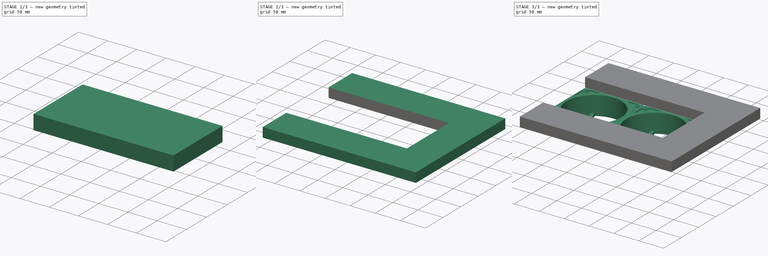
[diagram: build sequence overview — one tinted view per stage of 3, left to right]
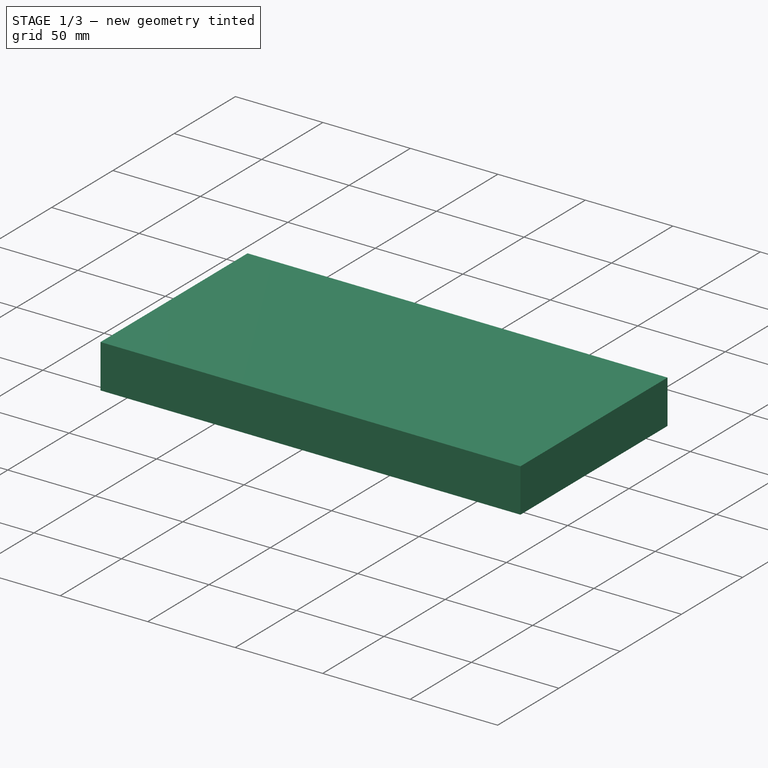
[diagram: stage 1 of 3 — iso view after this stage's code; geometry added in this stage tinted green]
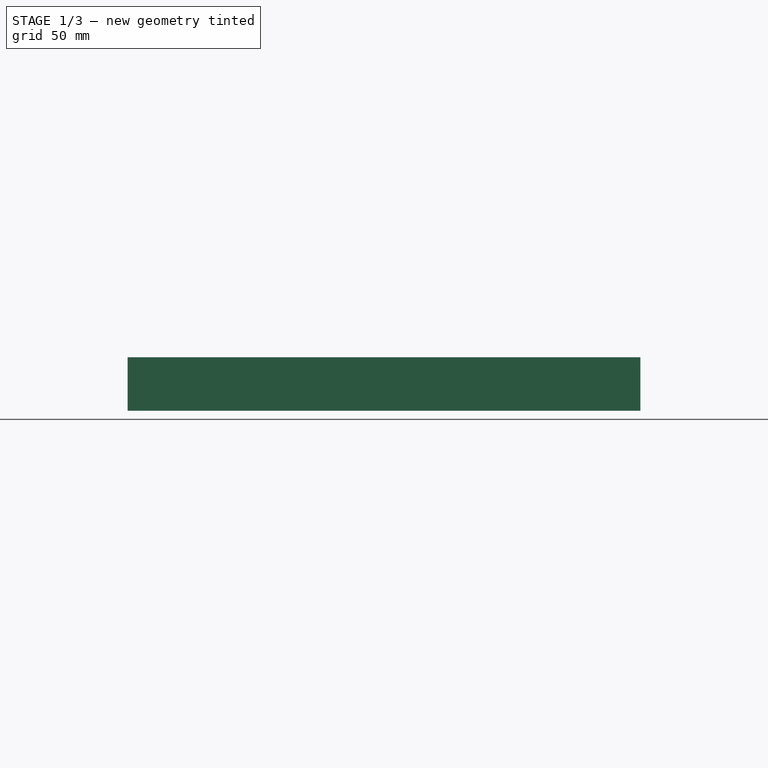
[diagram: stage 1 of 3 — front view after this stage's code; geometry added in this stage tinted green]
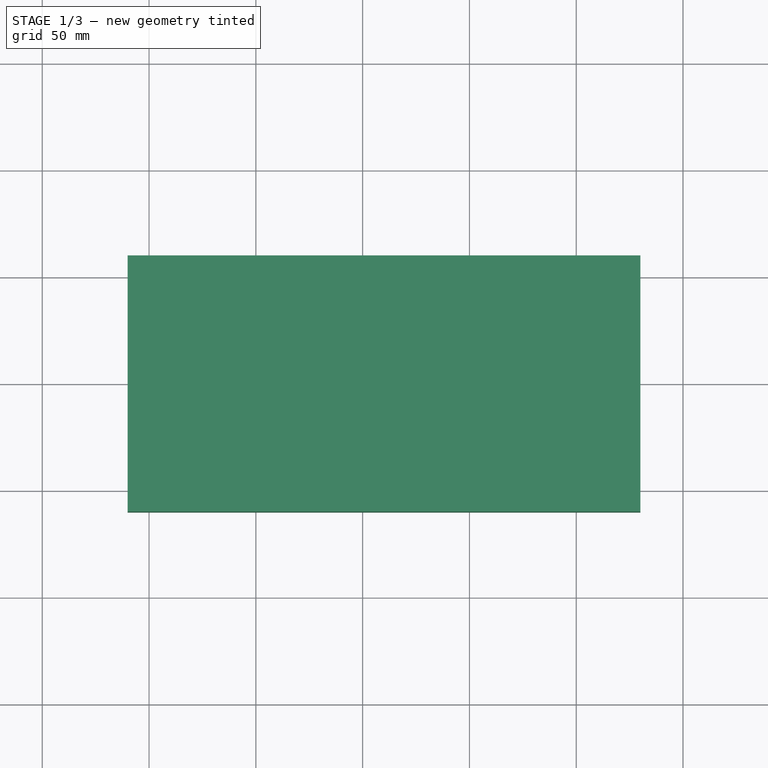
[diagram: stage 1 of 3 — top view after this stage's code; geometry added in this stage tinted green]
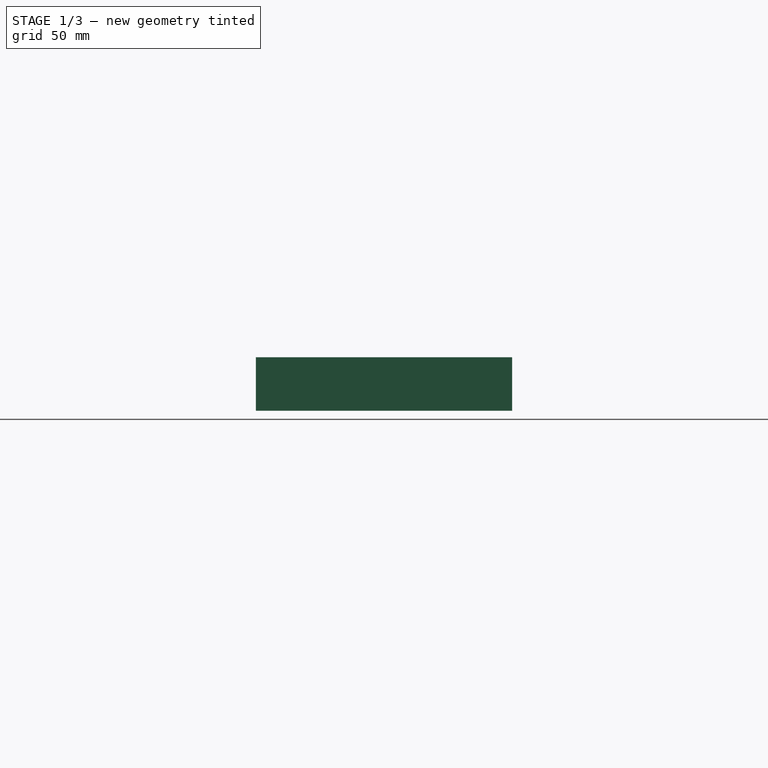
[diagram: stage 1 of 3 — right view after this stage's code; geometry added in this stage tinted green]
FCSTD DOCUMENT  (FreeCAD 0.15R4671 (Git))
Label: Cooler
License: All rights reserved
LicenseURL: http://en.wikipedia.org/wiki/All_rights_reserved
objects: App::FeaturePython×6, Part::FeaturePython×2, Part::Box×1, Sketcher::SketchObject×1, Part::Extrusion×1, Part::Cut×1
note: 6 computed .brp shape members not serialized (recipe doc carries the construction recipe); baked Part::Feature solids carry a one-line shape summary decoded from their .brp

FEATURE [Part::Box] Box  label="Cube"
  Height = 19.05
  Length = 304.8
  Placement = pos=(-60,-127,19) rot=(0,0,1;0rad)
  Width = 254
FEATURE [App::FeaturePython] planeConstraint04  # a2plus constraint (typed FeaturePython)
  Object1 = Fan_02
  Object2 = Fan_01
  SubElement1 = Face99
  SubElement2 = Face85
  Type = plane
  directionConstraint = 1
  offset = 0
FEATURE [App::FeaturePython] planeConstraint05  # a2plus constraint (typed FeaturePython)
  Object1 = Fan_02
  Object2 = Fan_01
  SubElement1 = Face15
  SubElement2 = Face15
  Type = plane
  directionConstraint = 0
  offset = 0
FEATURE [App::FeaturePython] planeConstraint06  # a2plus constraint (typed FeaturePython)
  Object1 = Fan_01
  Object2 = Fan_02
  SubElement1 = Face101
  SubElement2 = Face101
  Type = plane
  directionConstraint = 0
  offset = 0
FEATURE [Sketcher::SketchObject] Sketch
  Placement = pos=(-60,-127,19) rot=(1,0,0;3.14159rad)
  Support = -> Box [Face5]
  sketch-geometry (5):
    g0: LineSegment StartX=0 StartY=-67 StartZ=0 EndX=240 EndY=-67 EndZ=0
    g1: LineSegment StartX=240 StartY=-67 StartZ=0 EndX=240 EndY=-187 EndZ=0
    g2: LineSegment StartX=240 StartY=-187 StartZ=0 EndX=0 EndY=-187 EndZ=0
    g3: LineSegment StartX=0 StartY=-187 StartZ=0 EndX=0 EndY=-67 EndZ=0
    g4: GeomPoint [constr] X=0 Y=-127 Z=0
  constraints (14):
    c: Coincident(g0,g1)
    c: Coincident(g1,g2)
    c: Coincident(g2,g3)
    c: Coincident(g3,g0)
    c: Horizontal(g0)
    c: Horizontal(g2)
    c: Vertical(g1)
    c: Vertical(g3)
    c: DistanceY(g0,g2) = -120
    c: DistanceX(g1,g2) = -240
    c: PointOnObject(g0,g-2)
    c: PointOnObject(g4,g3)
    c: Symmetric(g0,g2,g4)
    c: DistanceY(g-1,g4) = -127
FEATURE [Part::Extrusion] Extrude
  Base = -> Sketch
  Dir = (0,0,25)
  Solid = true
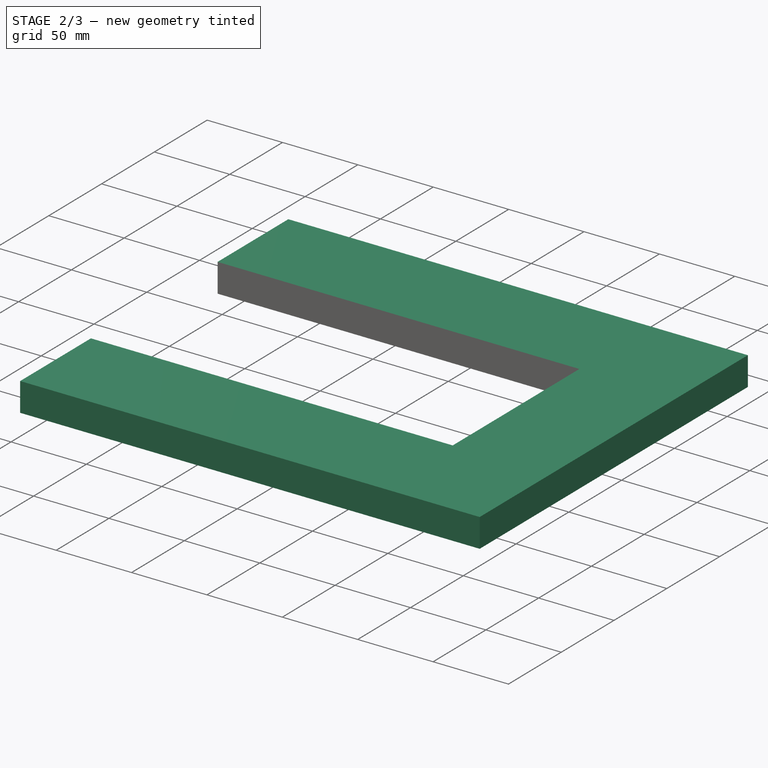
[diagram: stage 2 of 3 — iso view after this stage's code; geometry added in this stage tinted green]
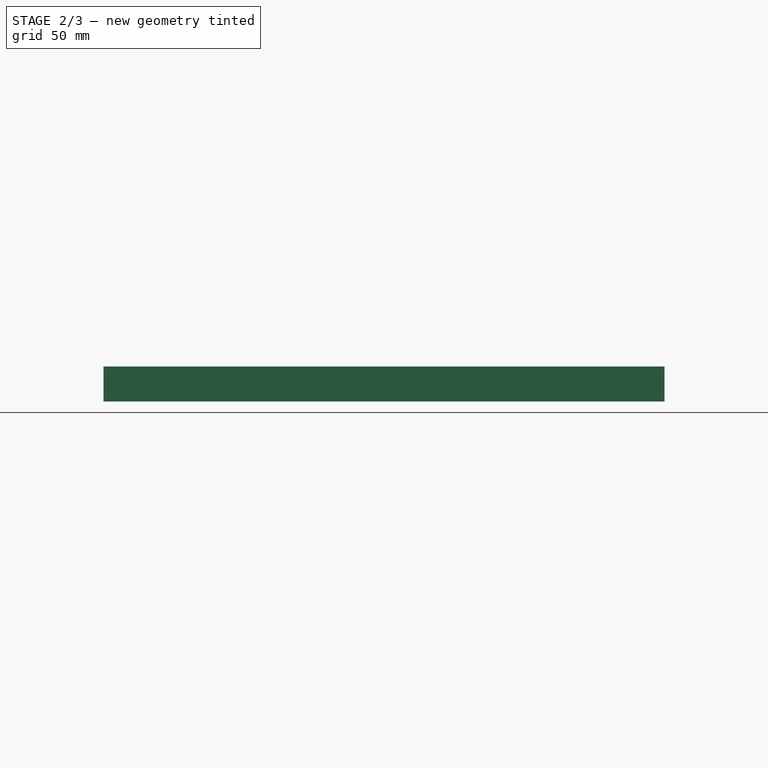
[diagram: stage 2 of 3 — front view after this stage's code; geometry added in this stage tinted green]
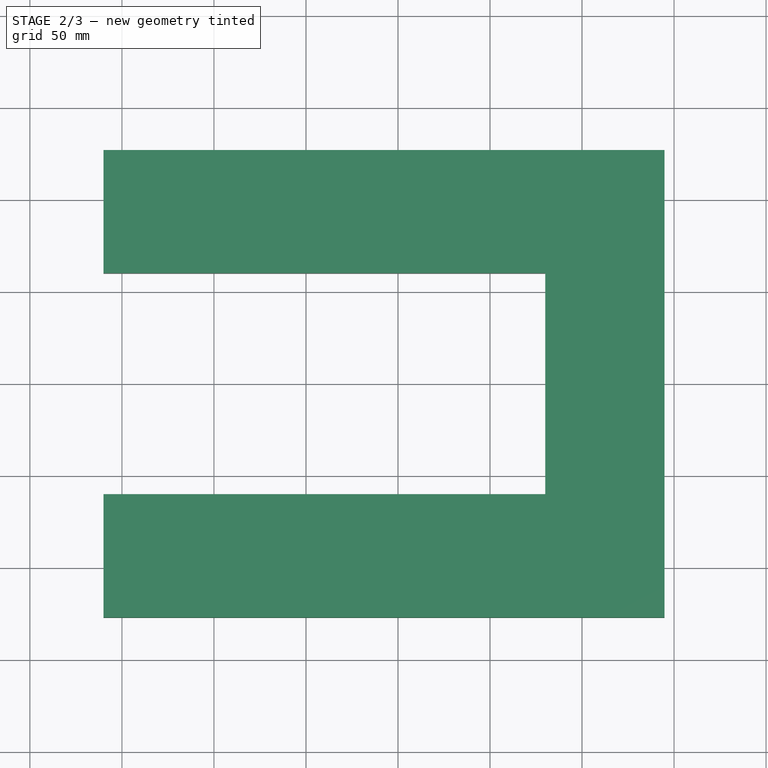
[diagram: stage 2 of 3 — top view after this stage's code; geometry added in this stage tinted green]
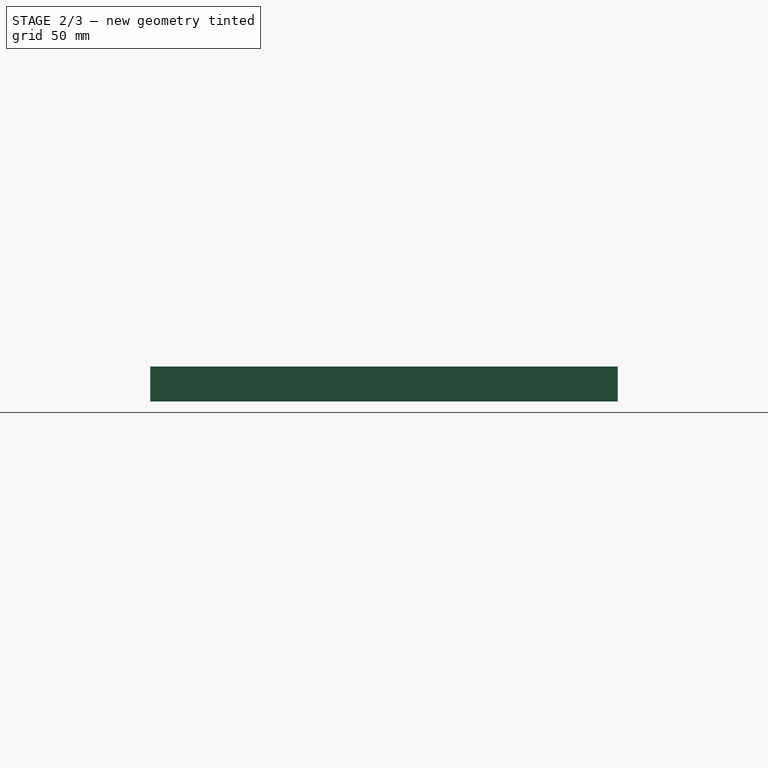
[diagram: stage 2 of 3 — right view after this stage's code; geometry added in this stage tinted green]
FEATURE [Part::Cut] Cut
  Base = -> Box
  Tool = -> Extrude
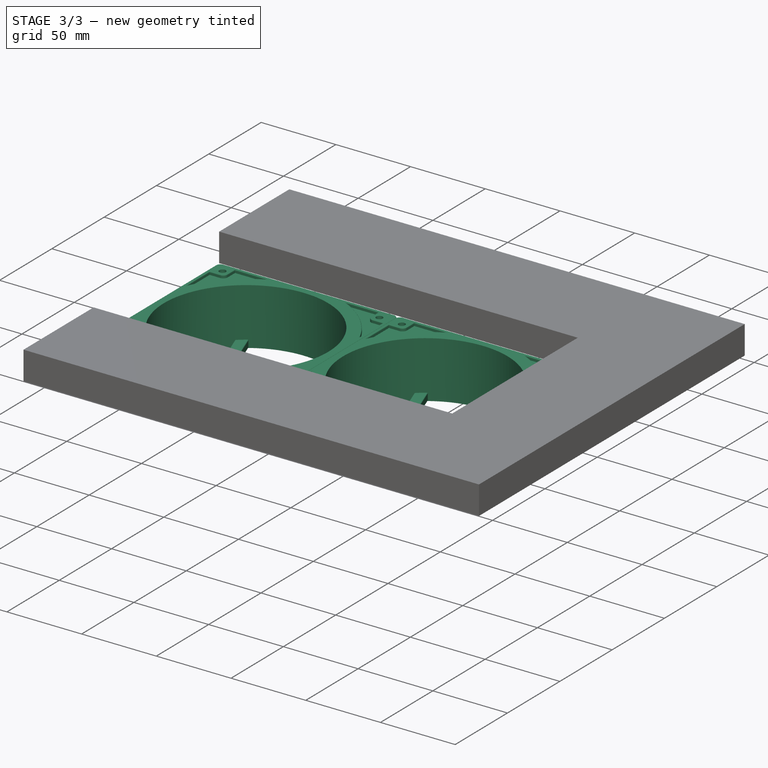
[diagram: stage 3 of 3 — iso view after this stage's code; geometry added in this stage tinted green]
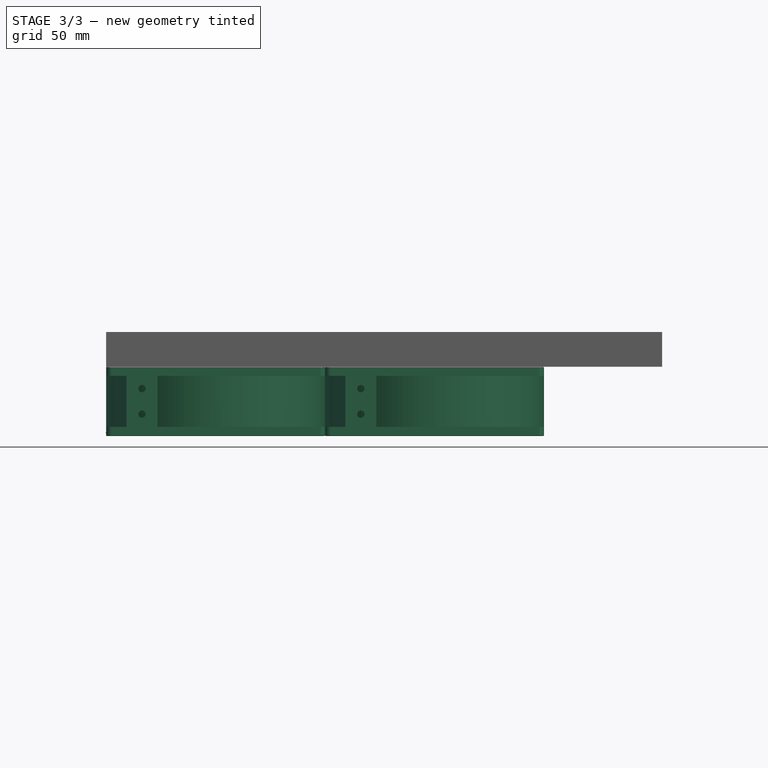
[diagram: stage 3 of 3 — front view after this stage's code; geometry added in this stage tinted green]
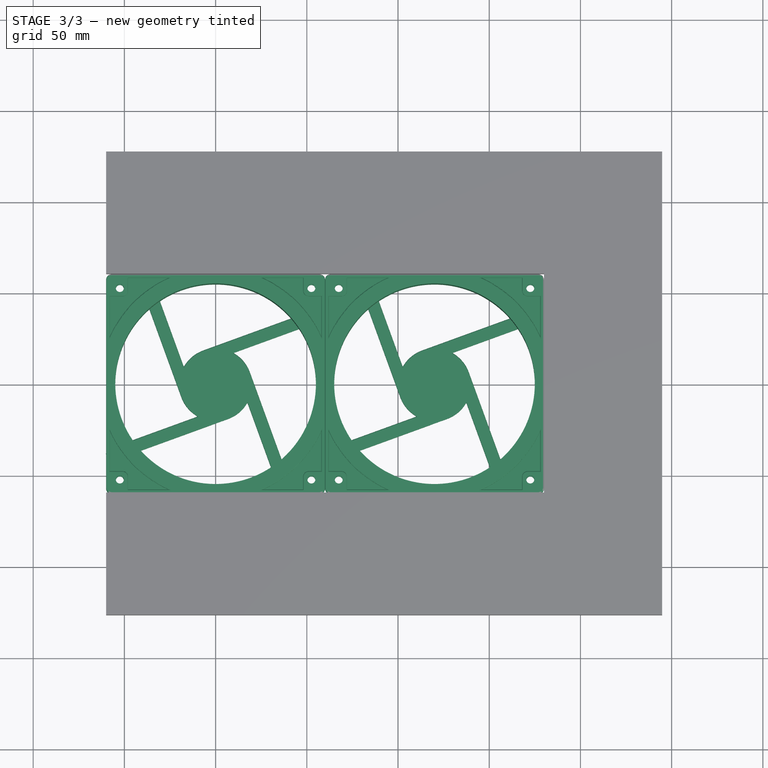
[diagram: stage 3 of 3 — top view after this stage's code; geometry added in this stage tinted green]
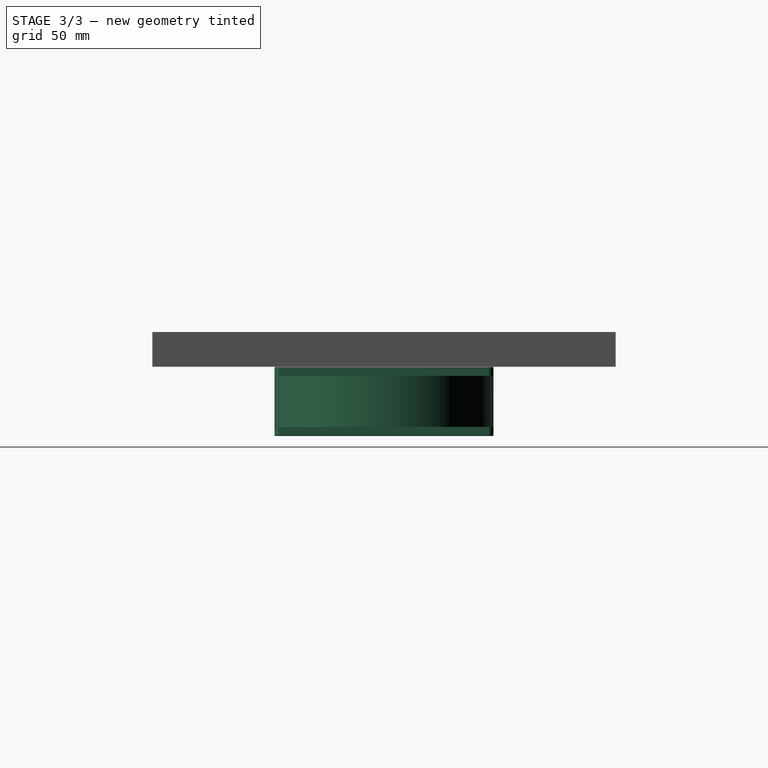
[diagram: stage 3 of 3 — right view after this stage's code; geometry added in this stage tinted green]
FEATURE [Part::FeaturePython] Fan_01  # a2plus imported part (geometry in sourceFile) (typed FeaturePython)
  fixedPosition = true
  sourceFile = <userpath>/projects/_random/Taz_Mega/Rack/CAD/_ref/Fan/Fan.fcstd
  timeLastImport = 1.44746e+09
  updateColors = true
FEATURE [App::FeaturePython] planeConstraint01  # a2plus constraint (typed FeaturePython)
  Object1 = Fan_01
  Object2 = Box
  SubElement1 = Face28
  SubElement2 = Face5
  Type = plane
  directionConstraint = 0
  offset = 0
FEATURE [App::FeaturePython] planeConstraint02  # a2plus constraint (typed FeaturePython)
  Object1 = Fan_01
  Object2 = Box
  SubElement1 = Face102
  SubElement2 = Face3
  Type = plane
  directionConstraint = 1
  offset = -67
FEATURE [App::FeaturePython] planeConstraint03  # a2plus constraint (typed FeaturePython)
  Object1 = Fan_01
  Object2 = Box
  SubElement1 = Face99
  SubElement2 = Face1
  Type = plane
  directionConstraint = 0
  offset = 0
FEATURE [Part::FeaturePython] Fan_02  # a2plus imported part (geometry in sourceFile) (typed FeaturePython)
  Placement = pos=(120,0,0) rot=(0,0,1;0rad)
  fixedPosition = false
  sourceFile = <userpath>/projects/_random/Taz_Mega/Rack/CAD/_ref/Fan/Fan.fcstd
  timeLastImport = 1.44746e+09
  updateColors = true
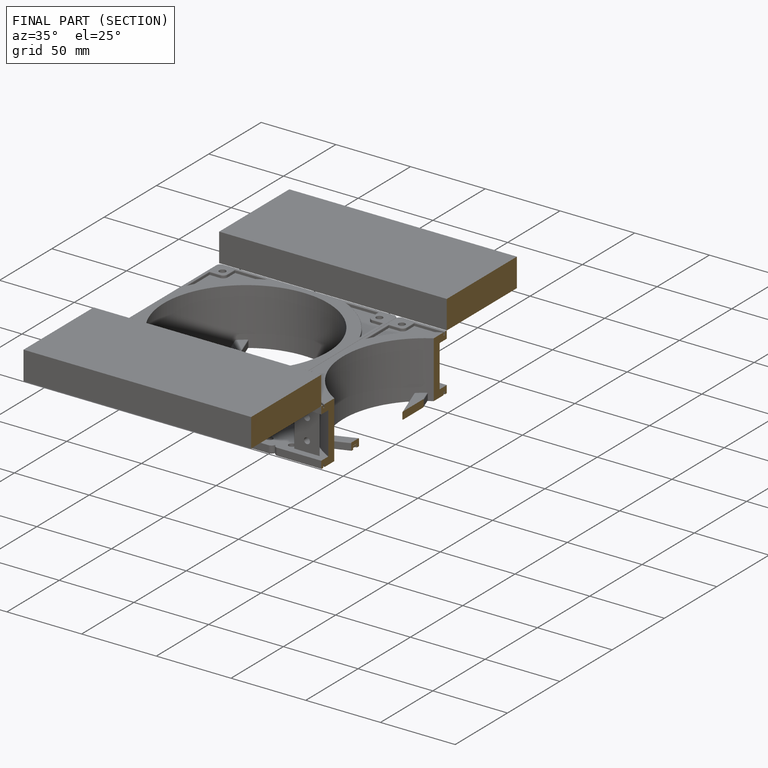
[diagram: finished part — half-section view (interior)]
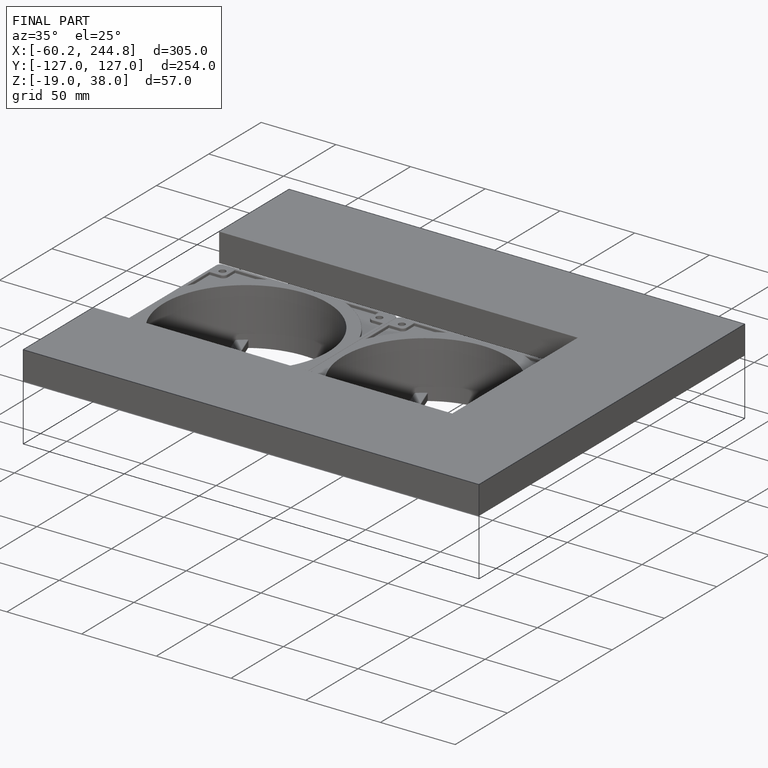
[diagram: finished part — iso view with bounding-box wireframe]
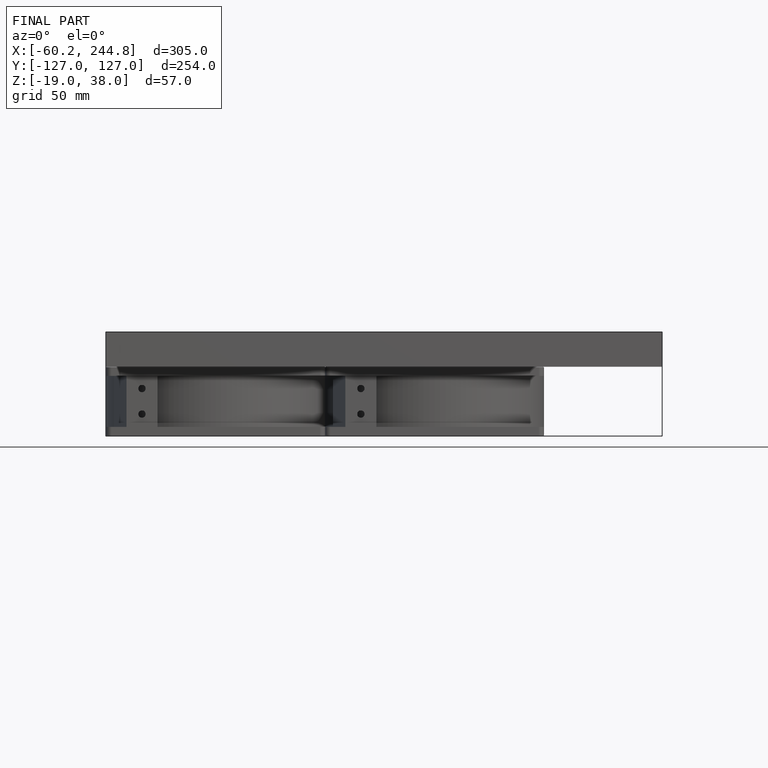
[diagram: finished part — front view with bounding-box wireframe]
